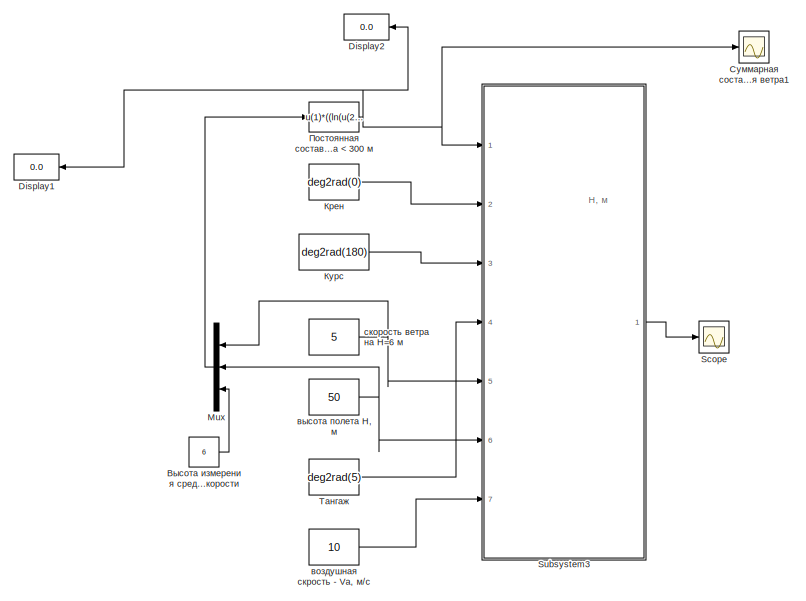
[diagram: root canvas - part 1/2, top left region]
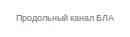
[diagram: root canvas - part 2/2, bottom right region]
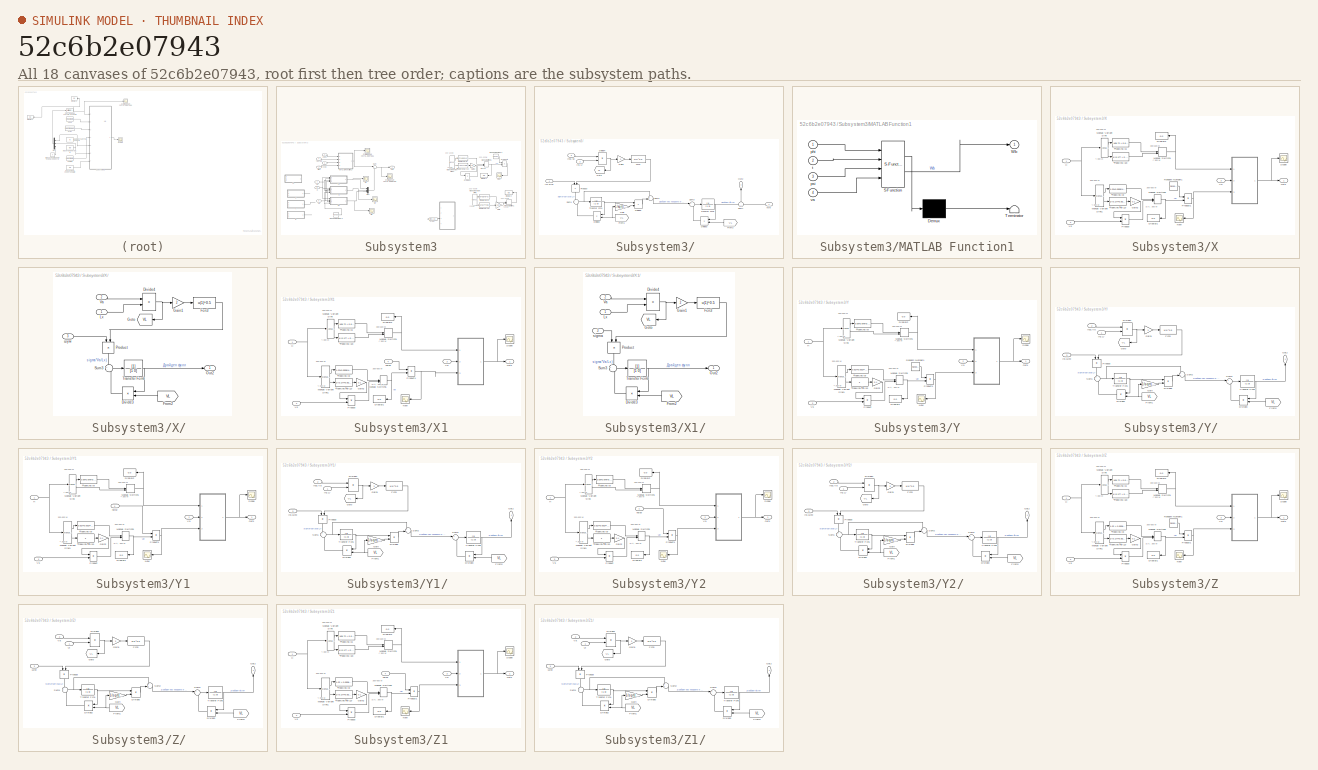
[diagram: thumbnail index - all 18 canvases of the model, root first then tree order]
MODEL slx_52c6b2e07943
KIND model
CONFIG AbsTol = auto
CONFIG EnableMultiTasking = on
CONFIG FixedStep = auto
CONFIG MaxStep = 0.1
CONFIG MinStep = auto
CONFIG RelTol = 1e-3
CONFIG SampleTimeConstraint = Unconstrained
CONFIG Solver = ode45
CONFIG SolverName = ode45
CONFIG StartTime = 0.0
CONFIG StopTime = 10
BLOCK [Fcn]     Постоянная составляющая скорости ветра < 300 м
  Expr = u(1)*((ln(u(2)/0.15)/(ln(u(3)/0.15))))
BLOCK [Display] Display1
  Decimation = 1
  NameLocation = top
  Ports = [1]
BLOCK [Display] Display2
  Decimation = 1
  NameLocation = top
  Ports = [1]
BLOCK [Mux] Mux
  DisplayOption = bar
  Inputs = 3
  Ports = [3, 1]
BLOCK [Scope] Scope
  Floating = off
  NumInputPorts = 1
  Ports = [1]
  ScopeSpecificationString = Simulink.scopes.TimeScopeBlockCfg('CurrentConfiguration', extmgr.ConfigurationSet(extmgr.Configuration('Core','General UI',true,'FigureColor',[1 1 1]),extmgr.Configuration('Core','Source UI',true),extmgr.Configuration('Sources','WiredSimulink',true,'DataLoggingVariableName','ScopeData1'),extmgr.Configuration('Visuals','Time Domain',true,'PlotType','Line','SerializedDisplays',{struct('MinYLimReal',...<+1808ch>
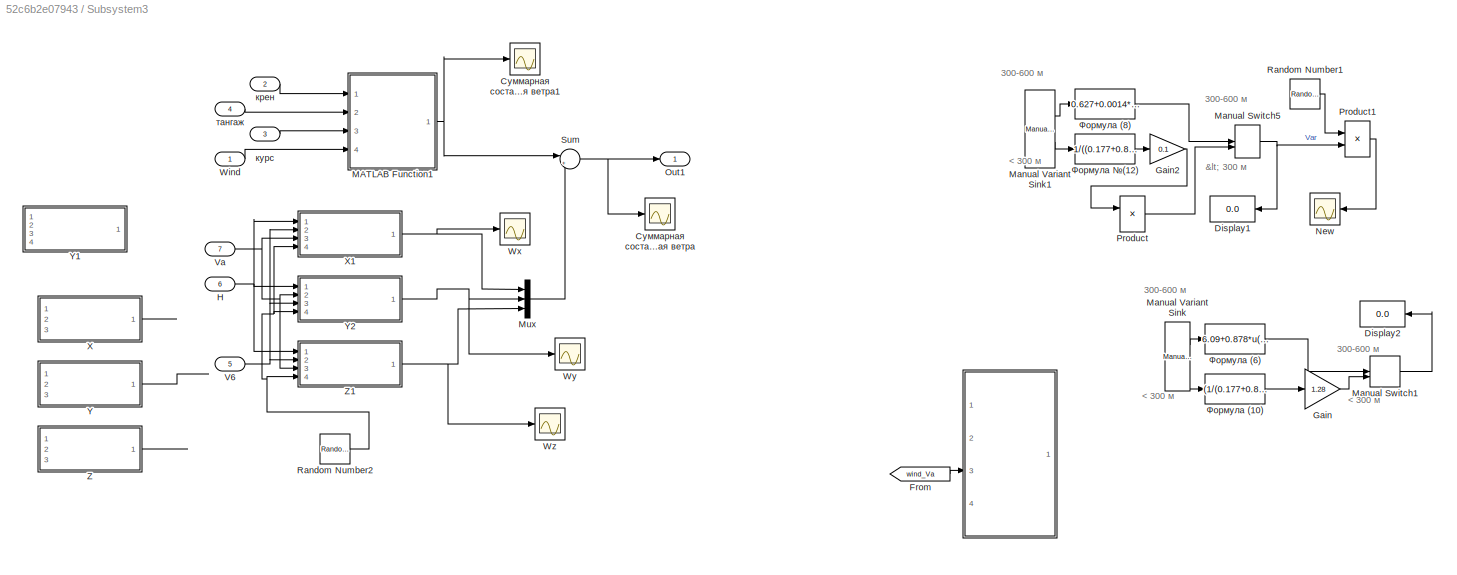
BLOCK [SubSystem] Subsystem3
  Ports = [7, 1]
  RequestExecContextInheritance = off
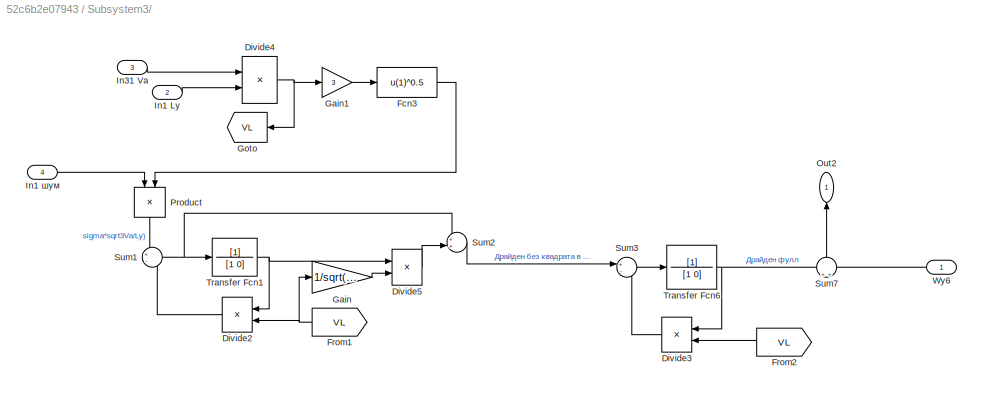
BLOCK [SubSystem] Subsystem3/ 
  Commented = on
  Ports = [4, 1]
  RequestExecContextInheritance = off
BLOCK [Product] Subsystem3/ /Divide2
  Inputs = **
  NameLocation = top
  Ports = [2, 1]
BLOCK [Product] Subsystem3/ /Divide3
  Inputs = **
  NameLocation = top
  Ports = [2, 1]
BLOCK [Product] Subsystem3/ /Divide4
  Inputs = */
  NameLocation = top
  Ports = [2, 1]
BLOCK [Product] Subsystem3/ /Divide5
  Inputs = **
  Ports = [2, 1]
BLOCK [Fcn] Subsystem3/ /Fcn3
  Expr = u(1)^0.5
BLOCK [From] Subsystem3/ /From1
  GotoTag = VL
  NameLocation = top
BLOCK [From] Subsystem3/ /From2
  GotoTag = VL
  NameLocation = top
BLOCK [Gain] Subsystem3/ /Gain
  Gain = 1/sqrt(3)
BLOCK [Gain] Subsystem3/ /Gain1
  Gain = 3
  NameLocation = top
BLOCK [Goto] Subsystem3/ /Goto
  GotoTag = VL
BLOCK [Inport] Subsystem3/ /In1 Ly
  NameLocation = top
  Port = 2
BLOCK [Inport] Subsystem3/ /In1 шум 
  NameLocation = top
  Port = 4
BLOCK [Inport] Subsystem3/ /In31 Va
  NameLocation = top
  Port = 3
BLOCK [Outport] Subsystem3/ /Out2
  NameLocation = right
BLOCK [Product] Subsystem3/ /Product
  NameLocation = right
  Ports = [2, 1]
BLOCK [Sum] Subsystem3/ /Sum1
  Inputs = +-
  Ports = [2, 1]
BLOCK [Sum] Subsystem3/ /Sum2
  NameLocation = top
  Ports = [2, 1]
BLOCK [Sum] Subsystem3/ /Sum3
  Inputs = +-
  Ports = [2, 1]
BLOCK [Sum] Subsystem3/ /Sum7
  NameLocation = right
  Ports = [2, 1]
BLOCK [TransferFcn] Subsystem3/ /Transfer Fcn1
  Denominator = [1  0]
BLOCK [TransferFcn] Subsystem3/ /Transfer Fcn6
  Denominator = [1  0]
BLOCK [Inport] Subsystem3/ /Wy6
  NameLocation = top
BLOCK [Display] Subsystem3/Display1
  Commented = on
  Decimation = 1
  NameLocation = top
  Ports = [1]
BLOCK [Display] Subsystem3/Display2
  Commented = on
  Decimation = 1
  NameLocation = top
  Ports = [1]
BLOCK [From] Subsystem3/From
  Commented = on
  GotoTag = wind_Va
BLOCK [Gain] Subsystem3/Gain
  Commented = on
  Gain = 1.28
BLOCK [Gain] Subsystem3/Gain2
  Commented = on
  Gain = 0.1
BLOCK [Inport] Subsystem3/H
  Port = 6
BLOCK [SubSystem] Subsystem3/MATLAB Function1
  ErrorFcn = Stateflow.Translate.translate
  PermitHierarchicalResolution = ExplicitOnly
  Ports = [4, 1]
  RequestExecContextInheritance = off
  SFBlockType = MATLAB Function
  TreatAsAtomicUnit = on
BLOCK [Demux] Subsystem3/MATLAB Function1/ Demux 
  Outputs = 1
  Ports = [1, 1]
BLOCK [S-Function] Subsystem3/MATLAB Function1/ SFunction 
  EnableBusSupport = on
  FunctionName = sf_sfun
  PortCounts = [4 2]
  Ports = [4, 2]
  SFcnIsStateOwnerBlock = off
  SFunctionDeploymentMode = off
  Tag = Stateflow S-Function 1
BLOCK [Terminator] Subsystem3/MATLAB Function1/ Terminator 
BLOCK [Outport] Subsystem3/MATLAB Function1/Wb
BLOCK [Inport] Subsystem3/MATLAB Function1/phi
BLOCK [Inport] Subsystem3/MATLAB Function1/psi
  Port = 3
BLOCK [Inport] Subsystem3/MATLAB Function1/t
  Port = 2
BLOCK [Inport] Subsystem3/MATLAB Function1/va
  Port = 4
BLOCK [ManualSwitch] Subsystem3/Manual Switch1
  Commented = on
  CurrentSetting = 0
BLOCK [ManualSwitch] Subsystem3/Manual Switch5
  Commented = on
  CurrentSetting = 0
BLOCK [Reference] Subsystem3/Manual Variant Sink  REF=simulink/Signal
Routing/Manual
Variant Sink
  Commented = on
  Ports = [1, 2]
  SourceBlock = simulink/Signal\nRouting/Manual\nVariant Sink
  SourceProductBaseCode = SL
  SourceType = ManualVariantSink
BLOCK [Reference] Subsystem3/Manual Variant Sink1  REF=simulink/Signal
Routing/Manual
Variant Sink
  Commented = on
  Ports = [1, 2]
  SourceBlock = simulink/Signal\nRouting/Manual\nVariant Sink
  SourceProductBaseCode = SL
  SourceType = ManualVariantSink
BLOCK [Mux] Subsystem3/Mux
  DisplayOption = bar
  Inputs = 3
  Ports = [3, 1]
BLOCK [Scope] Subsystem3/New
  Commented = on
  Floating = off
  NameLocation = top
  NumInputPorts = 1
  Ports = [1]
  ScopeSpecificationString = Simulink.scopes.TimeScopeBlockCfg('CurrentConfiguration', extmgr.ConfigurationSet(extmgr.Configuration('Core','General UI',true),extmgr.Configuration('Core','Source UI',true),extmgr.Configuration('Sources','WiredSimulink',true,'DataLoggingVariableName','ScopeData1'),extmgr.Configuration('Visuals','Time Domain',true,'SerializedDisplays',{struct('MinYLimReal','-2.82261','MaxYLimReal','2.57881','YLab...<+1515ch>
BLOCK [Outport] Subsystem3/Out1
BLOCK [Product] Subsystem3/Product
  Commented = on
  Ports = [2, 1]
BLOCK [Product] Subsystem3/Product1
  Commented = on
  Ports = [2, 1]
BLOCK [RandomNumber] Subsystem3/Random Number1
  Commented = on
  SampleTime = 0.1
BLOCK [RandomNumber] Subsystem3/Random Number2
  SampleTime = 0.1
BLOCK [Sum] Subsystem3/Sum
  Inputs = |++
  Ports = [2, 1]
BLOCK [Inport] Subsystem3/V6
  Port = 5
BLOCK [Inport] Subsystem3/Va
  Port = 7
BLOCK [Inport] Subsystem3/Wind
BLOCK [Scope] Subsystem3/Wx
  Floating = off
  NumInputPorts = 1
  Ports = [1]
  ScopeSpecificationString = Simulink.scopes.TimeScopeBlockCfg('CurrentConfiguration', extmgr.ConfigurationSet(extmgr.Configuration('Core','General UI',true),extmgr.Configuration('Core','Source UI',true),extmgr.Configuration('Sources','WiredSimulink',true,'DataLoggingVariableName','ScopeData4'),extmgr.Configuration('Visuals','Time Domain',true,'SerializedDisplays',{struct('MinYLimReal','-0.67805','MaxYLimReal','0.60598','YLab...<+1388ch>
BLOCK [Scope] Subsystem3/Wy
  Floating = off
  NumInputPorts = 1
  Ports = [1]
  ScopeSpecificationString = Simulink.scopes.TimeScopeBlockCfg('CurrentConfiguration', extmgr.ConfigurationSet(extmgr.Configuration('Core','General UI',true),extmgr.Configuration('Core','Source UI',true),extmgr.Configuration('Sources','WiredSimulink',true,'DataLoggingVariableName','ScopeData5'),extmgr.Configuration('Visuals','Time Domain',true,'SerializedDisplays',{struct('MinYLimReal','-0.15319','MaxYLimReal','0.25218','YLab...<+1390ch>
BLOCK [Scope] Subsystem3/Wz
  Floating = off
  NumInputPorts = 1
  Ports = [1]
  ScopeSpecificationString = Simulink.scopes.TimeScopeBlockCfg('CurrentConfiguration', extmgr.ConfigurationSet(extmgr.Configuration('Core','General UI',true),extmgr.Configuration('Core','Source UI',true),extmgr.Configuration('Sources','WiredSimulink',true,'DataLoggingVariableName','ScopeData6'),extmgr.Configuration('Visuals','Time Domain',true,'SerializedDisplays',{struct('MinYLimReal','-0.71714','MaxYLimReal','0.62654','YLab...<+1391ch>
BLOCK [SubSystem] Subsystem3/X
  Commented = on
  Ports = [3, 1]
  RequestExecContextInheritance = off
  TreatAsAtomicUnit = on
BLOCK [SubSystem] Subsystem3/X/ 
  Ports = [3, 1]
  RequestExecContextInheritance = off
BLOCK [Product] Subsystem3/X/ /Divide3
  Inputs = **
  NameLocation = top
  Ports = [2, 1]
BLOCK [Product] Subsystem3/X/ /Divide4
  Inputs = */
  NameLocation = top
  Ports = [2, 1]
BLOCK [Fcn] Subsystem3/X/ /Fcn3
  Expr = u(1)^0.5
BLOCK [From] Subsystem3/X/ /From2
  GotoTag = VL
  NameLocation = top
BLOCK [Gain] Subsystem3/X/ /Gain1
  Gain = 2
  NameLocation = top
BLOCK [Goto] Subsystem3/X/ /Goto
  GotoTag = VL
BLOCK [Inport] Subsystem3/X/ /Lx
  NameLocation = top
BLOCK [Outport] Subsystem3/X/ /Out2
BLOCK [Product] Subsystem3/X/ /Product
  NameLocation = right
  Ports = [2, 1]
BLOCK [Sum] Subsystem3/X/ /Sum3
  Inputs = +-
  Ports = [2, 1]
BLOCK [TransferFcn] Subsystem3/X/ /Transfer Fcn6
  Denominator = [1  0]
BLOCK [Inport] Subsystem3/X/ /Va
  NameLocation = top
  Port = 2
BLOCK [Inport] Subsystem3/X/ /шум 
  NameLocation = top
  Port = 3
BLOCK [Display] Subsystem3/X/Display1
  Decimation = 1
  NameLocation = top
  Ports = [1]
BLOCK [Display] Subsystem3/X/Display2
  Decimation = 1
  NameLocation = top
  Ports = [1]
BLOCK [Gain] Subsystem3/X/Gain2
  Gain = 0.1
BLOCK [Inport] Subsystem3/X/H
BLOCK [ManualSwitch] Subsystem3/X/Manual Switch1
  CurrentSetting = 0
BLOCK [ManualSwitch] Subsystem3/X/Manual Switch5
  CurrentSetting = 0
BLOCK [Reference] Subsystem3/X/Manual Variant Sink  REF=simulink/Signal
Routing/Manual
Variant Sink
  Ports = [1, 2]
  SourceBlock = simulink/Signal\nRouting/Manual\nVariant Sink
  SourceProductBaseCode = SL
  SourceType = ManualVariantSink
BLOCK [Reference] Subsystem3/X/Manual Variant Sink1  REF=simulink/Signal
Routing/Manual
Variant Sink
  Ports = [1, 2]
  SourceBlock = simulink/Signal\nRouting/Manual\nVariant Sink
  SourceProductBaseCode = SL
  SourceType = ManualVariantSink
BLOCK [Scope] Subsystem3/X/New
  Floating = off
  NameLocation = top
  NumInputPorts = 1
  Ports = [1]
  ScopeSpecificationString = Simulink.scopes.TimeScopeBlockCfg('CurrentConfiguration', extmgr.ConfigurationSet(extmgr.Configuration('Core','General UI',true),extmgr.Configuration('Core','Source UI',true),extmgr.Configuration('Sources','WiredSimulink',true,'DataLoggingVariableName','ScopeData2'),extmgr.Configuration('Visuals','Time Domain',true,'SerializedDisplays',{struct('MinYLimReal','-2.82261','MaxYLimReal','2.57881','YLab...<+1515ch>  <repeated x7 — deduplicated; at blocks: New>
BLOCK [Outport] Subsystem3/X/Out1
BLOCK [Product] Subsystem3/X/Product
  Ports = [2, 1]
BLOCK [Product] Subsystem3/X/Product1
  Ports = [2, 1]
BLOCK [RandomNumber] Subsystem3/X/Random Number1
  SampleTime = 0.1
BLOCK [Scope] Subsystem3/X/Scope
  Floating = off
  NumInputPorts = 1
  Ports = [1]
  ScopeSpecificationString = Simulink.scopes.TimeScopeBlockCfg('CurrentConfiguration', extmgr.ConfigurationSet(extmgr.Configuration('Core','General UI',true),extmgr.Configuration('Core','Source UI',true),extmgr.Configuration('Sources','WiredSimulink',true,'DataLoggingVariableName','ScopeData3'),extmgr.Configuration('Visuals','Time Domain',true),extmgr.Configuration('Tools','Plot Navigation',true),extmgr.Configuration('Tools',...<+40ch>  <repeated x4 — deduplicated; at blocks: Scope>
BLOCK [Inport] Subsystem3/X/V6
  Port = 2
BLOCK [Inport] Subsystem3/X/Va
  Port = 3
BLOCK [Fcn] Subsystem3/X/Формула (10)
  Expr = 1/(0.177 + 0.823*(u(1)/300))^1.2
BLOCK [Fcn] Subsystem3/X/Формула (6)
  Expr = -169.72 + 0.605*u(1)
BLOCK [Fcn] Subsystem3/X/Формула (8)
  Expr = 1.02+0.0008*u(1)
BLOCK [Fcn] Subsystem3/X/Формула №(12)
  Expr = 1/(0.177+0.823*(u(1)/300))^0.4
BLOCK [SubSystem] Subsystem3/X1
  Ports = [4, 1]
  RequestExecContextInheritance = off
  TreatAsAtomicUnit = on
BLOCK [SubSystem] Subsystem3/X1/ 
  Ports = [3, 1]
  RequestExecContextInheritance = off
BLOCK [Product] Subsystem3/X1/ /Divide3
  Inputs = **
  NameLocation = top
  Ports = [2, 1]
BLOCK [Product] Subsystem3/X1/ /Divide4
  Inputs = */
  NameLocation = top
  Ports = [2, 1]
BLOCK [Fcn] Subsystem3/X1/ /Fcn3
  Expr = u(1)^0.5
BLOCK [From] Subsystem3/X1/ /From2
  GotoTag = VL
  NameLocation = top
BLOCK [Gain] Subsystem3/X1/ /Gain1
  Gain = 2
  NameLocation = top
BLOCK [Goto] Subsystem3/X1/ /Goto
  GotoTag = VL
BLOCK [Inport] Subsystem3/X1/ /Lx
  NameLocation = top
BLOCK [Outport] Subsystem3/X1/ /Out2
BLOCK [Product] Subsystem3/X1/ /Product
  NameLocation = right
  Ports = [2, 1]
BLOCK [Sum] Subsystem3/X1/ /Sum3
  Inputs = +-
  Ports = [2, 1]
BLOCK [TransferFcn] Subsystem3/X1/ /Transfer Fcn6
  Denominator = [1  0]
BLOCK [Inport] Subsystem3/X1/ /Va
  NameLocation = top
  Port = 2
BLOCK [Inport] Subsystem3/X1/ /sigma 
  NameLocation = top
  Port = 3
BLOCK [Display] Subsystem3/X1/Display1
  Decimation = 1
  NameLocation = top
  Ports = [1]
BLOCK [Display] Subsystem3/X1/Display2
  Decimation = 1
  NameLocation = top
  Ports = [1]
BLOCK [Gain] Subsystem3/X1/Gain2
  Gain = 0.1
BLOCK [Inport] Subsystem3/X1/H
BLOCK [ManualSwitch] Subsystem3/X1/Manual Switch1
  CurrentSetting = 0
BLOCK [ManualSwitch] Subsystem3/X1/Manual Switch5
  CurrentSetting = 0
BLOCK [Reference] Subsystem3/X1/Manual Variant Sink  REF=simulink/Signal
Routing/Manual
Variant Sink
  Ports = [1, 2]
  SourceBlock = simulink/Signal\nRouting/Manual\nVariant Sink
  SourceProductBaseCode = SL
  SourceType = ManualVariantSink
BLOCK [Reference] Subsystem3/X1/Manual Variant Sink1  REF=simulink/Signal
Routing/Manual
Variant Sink
  Ports = [1, 2]
  SourceBlock = simulink/Signal\nRouting/Manual\nVariant Sink
  SourceProductBaseCode = SL
  SourceType = ManualVariantSink
BLOCK [Scope] Subsystem3/X1/New
  Floating = off
  NameLocation = top
  NumInputPorts = 1
  Ports = [1]
BLOCK [Outport] Subsystem3/X1/Out1
BLOCK [Product] Subsystem3/X1/Product
  Ports = [2, 1]
BLOCK [Product] Subsystem3/X1/Product1
  Ports = [2, 1]
BLOCK [Scope] Subsystem3/X1/Scope
  Floating = off
  NumInputPorts = 1
  Ports = [1]
BLOCK [Inport] Subsystem3/X1/V6
  Port = 2
BLOCK [Inport] Subsystem3/X1/Va
  Port = 3
BLOCK [Inport] Subsystem3/X1/noise
  Port = 4
BLOCK [Fcn] Subsystem3/X1/Формула (10)
  Expr = 1/(0.177 + 0.823*(u(1)/300))^1.2
BLOCK [Fcn] Subsystem3/X1/Формула (6)
  Expr = -169.72 + 0.605*u(1)
BLOCK [Fcn] Subsystem3/X1/Формула (8)
  Expr = 1.02+0.0008*u(1)
BLOCK [Fcn] Subsystem3/X1/Формула №(12)
  Expr = 1/(0.177+0.823*(u(1)/300))^0.4
BLOCK [SubSystem] Subsystem3/Y
  Commented = on
  Ports = [3, 1]
  RequestExecContextInheritance = off
  TreatAsAtomicUnit = on
BLOCK [SubSystem] Subsystem3/Y/ 
  Ports = [3, 1]
  RequestExecContextInheritance = off
BLOCK [Product] Subsystem3/Y/ /Divide2
  Inputs = **
  NameLocation = top
  Ports = [2, 1]
BLOCK [Product] Subsystem3/Y/ /Divide3
  Inputs = **
  NameLocation = top
  Ports = [2, 1]
BLOCK [Product] Subsystem3/Y/ /Divide4
  Inputs = */
  NameLocation = top
  Ports = [2, 1]
BLOCK [Product] Subsystem3/Y/ /Divide5
  Inputs = **
  Ports = [2, 1]
BLOCK [Fcn] Subsystem3/Y/ /Fcn3
  Expr = u(1)^0.5
BLOCK [From] Subsystem3/Y/ /From1
  GotoTag = VL
  NameLocation = top
BLOCK [From] Subsystem3/Y/ /From2
  GotoTag = VL
  NameLocation = top
BLOCK [Gain] Subsystem3/Y/ /Gain
  Gain = 1/sqrt(3)
BLOCK [Gain] Subsystem3/Y/ /Gain1
  Gain = 3
  NameLocation = top
BLOCK [Goto] Subsystem3/Y/ /Goto
  GotoTag = VL
BLOCK [Inport] Subsystem3/Y/ /In1 Ly
  NameLocation = top
BLOCK [Inport] Subsystem3/Y/ /In1 шум 
  NameLocation = top
  Port = 3
BLOCK [Inport] Subsystem3/Y/ /In31 Va
  NameLocation = top
  Port = 2
BLOCK [Outport] Subsystem3/Y/ /Out2
  NameLocation = right
BLOCK [Product] Subsystem3/Y/ /Product
  NameLocation = right
  Ports = [2, 1]
BLOCK [Sum] Subsystem3/Y/ /Sum1
  Inputs = +-
  Ports = [2, 1]
BLOCK [Sum] Subsystem3/Y/ /Sum2
  NameLocation = top
  Ports = [2, 1]
BLOCK [Sum] Subsystem3/Y/ /Sum3
  Inputs = +-
  Ports = [2, 1]
BLOCK [TransferFcn] Subsystem3/Y/ /Transfer Fcn1
  Denominator = [1  0]
BLOCK [TransferFcn] Subsystem3/Y/ /Transfer Fcn6
  Denominator = [1  0]
BLOCK [Display] Subsystem3/Y/Display1
  Decimation = 1
  NameLocation = top
  Ports = [1]
BLOCK [Display] Subsystem3/Y/Display2
  Decimation = 1
  NameLocation = top
  Ports = [1]
BLOCK [Gain] Subsystem3/Y/Gain2
  Gain = 0.1
BLOCK [Inport] Subsystem3/Y/H
BLOCK [ManualSwitch] Subsystem3/Y/Manual Switch1
  CurrentSetting = 0
BLOCK [ManualSwitch] Subsystem3/Y/Manual Switch5
  CurrentSetting = 0
BLOCK [Reference] Subsystem3/Y/Manual Variant Sink  REF=simulink/Signal
Routing/Manual
Variant Sink
  Ports = [1, 2]
  SourceBlock = simulink/Signal\nRouting/Manual\nVariant Sink
  SourceProductBaseCode = SL
  SourceType = ManualVariantSink
BLOCK [Reference] Subsystem3/Y/Manual Variant Sink1  REF=simulink/Signal
Routing/Manual
Variant Sink
  Ports = [1, 2]
  SourceBlock = simulink/Signal\nRouting/Manual\nVariant Sink
  SourceProductBaseCode = SL
  SourceType = ManualVariantSink
BLOCK [Scope] Subsystem3/Y/New
  Floating = off
  NameLocation = top
  NumInputPorts = 1
  Ports = [1]
BLOCK [Outport] Subsystem3/Y/Out1
BLOCK [Product] Subsystem3/Y/Product
  Ports = [2, 1]
BLOCK [Product] Subsystem3/Y/Product1
  Ports = [2, 1]
BLOCK [RandomNumber] Subsystem3/Y/Random Number1
  SampleTime = 0.1
BLOCK [Scope] Subsystem3/Y/Scope
  Floating = off
  NumInputPorts = 1
  Ports = [1]
  ScopeSpecificationString = Simulink.scopes.TimeScopeBlockCfg('CurrentConfiguration', extmgr.ConfigurationSet(extmgr.Configuration('Core','General UI',true),extmgr.Configuration('Core','Source UI',true),extmgr.Configuration('Sources','WiredSimulink',true,'DataLoggingVariableName','ScopeData3'),extmgr.Configuration('Visuals','Time Domain',true,'SerializedDisplays',{struct('MinYLimReal','-0.15319','MaxYLimReal','0.25218','YLab...<+1360ch>  <repeated x3 — deduplicated; at blocks: Scope>
BLOCK [Inport] Subsystem3/Y/V6
  Port = 3
BLOCK [Inport] Subsystem3/Y/Va
  Port = 2
BLOCK [Fcn] Subsystem3/Y/Формула (6)
  Expr = 6.09+0.878*u(1)
BLOCK [Fcn] Subsystem3/Y/Формула (8)
  Expr = 0.627+0.0014*u(1)
BLOCK [Fcn] Subsystem3/Y/Формула №(12)
  Expr = 1
BLOCK [SubSystem] Subsystem3/Y1
  Commented = on
  Ports = [4, 1]
  RequestExecContextInheritance = off
  TreatAsAtomicUnit = on
BLOCK [SubSystem] Subsystem3/Y1/ 
  Ports = [3, 1]
  RequestExecContextInheritance = off
BLOCK [Product] Subsystem3/Y1/ /Divide2
  Inputs = **
  NameLocation = top
  Ports = [2, 1]
BLOCK [Product] Subsystem3/Y1/ /Divide3
  Inputs = **
  NameLocation = top
  Ports = [2, 1]
BLOCK [Product] Subsystem3/Y1/ /Divide4
  Inputs = */
  NameLocation = top
  Ports = [2, 1]
BLOCK [Product] Subsystem3/Y1/ /Divide5
  Inputs = **
  Ports = [2, 1]
BLOCK [Fcn] Subsystem3/Y1/ /Fcn3
  Expr = u(1)^0.5
BLOCK [From] Subsystem3/Y1/ /From1
  GotoTag = VL
  NameLocation = top
BLOCK [From] Subsystem3/Y1/ /From2
  GotoTag = VL
  NameLocation = top
BLOCK [Gain] Subsystem3/Y1/ /Gain
  Gain = 1/sqrt(3)
BLOCK [Gain] Subsystem3/Y1/ /Gain1
  Gain = 3
  NameLocation = top
BLOCK [Goto] Subsystem3/Y1/ /Goto
  GotoTag = VL
BLOCK [Inport] Subsystem3/Y1/ /In1 Ly
  NameLocation = top
BLOCK [Inport] Subsystem3/Y1/ /In1 шум 
  NameLocation = top
  Port = 3
BLOCK [Inport] Subsystem3/Y1/ /In31 Va
  NameLocation = top
  Port = 2
BLOCK [Outport] Subsystem3/Y1/ /Out2
  NameLocation = right
BLOCK [Product] Subsystem3/Y1/ /Product
  NameLocation = right
  Ports = [2, 1]
BLOCK [Sum] Subsystem3/Y1/ /Sum1
  Inputs = +-
  Ports = [2, 1]
BLOCK [Sum] Subsystem3/Y1/ /Sum2
  NameLocation = top
  Ports = [2, 1]
BLOCK [Sum] Subsystem3/Y1/ /Sum3
  Inputs = +-
  Ports = [2, 1]
BLOCK [TransferFcn] Subsystem3/Y1/ /Transfer Fcn1
  Denominator = [1  0]
BLOCK [TransferFcn] Subsystem3/Y1/ /Transfer Fcn6
  Denominator = [1  0]
BLOCK [Display] Subsystem3/Y1/Display1
  Decimation = 1
  NameLocation = top
  Ports = [1]
BLOCK [Display] Subsystem3/Y1/Display2
  Decimation = 1
  NameLocation = top
  Ports = [1]
BLOCK [Gain] Subsystem3/Y1/Gain2
  Gain = 0.1
BLOCK [Inport] Subsystem3/Y1/H
BLOCK [ManualSwitch] Subsystem3/Y1/Manual Switch1
  CurrentSetting = 0
BLOCK [ManualSwitch] Subsystem3/Y1/Manual Switch5
  CurrentSetting = 0
BLOCK [Reference] Subsystem3/Y1/Manual Variant Sink  REF=simulink/Signal
Routing/Manual
Variant Sink
  Ports = [1, 2]
  SourceBlock = simulink/Signal\nRouting/Manual\nVariant Sink
  SourceProductBaseCode = SL
  SourceType = ManualVariantSink
BLOCK [Reference] Subsystem3/Y1/Manual Variant Sink1  REF=simulink/Signal
Routing/Manual
Variant Sink
  Ports = [1, 2]
  SourceBlock = simulink/Signal\nRouting/Manual\nVariant Sink
  SourceProductBaseCode = SL
  SourceType = ManualVariantSink
BLOCK [Scope] Subsystem3/Y1/New
  Floating = off
  NameLocation = top
  NumInputPorts = 1
  Ports = [1]
BLOCK [Outport] Subsystem3/Y1/Out1
BLOCK [Product] Subsystem3/Y1/Product
  Ports = [2, 1]
BLOCK [Product] Subsystem3/Y1/Product1
  Ports = [2, 1]
BLOCK [Scope] Subsystem3/Y1/Scope
  Floating = off
  NumInputPorts = 1
  Ports = [1]
BLOCK [Inport] Subsystem3/Y1/V6
  Port = 3
BLOCK [Inport] Subsystem3/Y1/Va
  Port = 2
BLOCK [Inport] Subsystem3/Y1/noise
  Port = 4
BLOCK [Fcn] Subsystem3/Y1/Формула (6)
  Expr = 6.09+0.878*u(1)
BLOCK [Fcn] Subsystem3/Y1/Формула (8)
  Expr = 0.627+0.0014*u(1)
BLOCK [Fcn] Subsystem3/Y1/Формула №(12)
  Expr = 1
BLOCK [SubSystem] Subsystem3/Y2
  Ports = [4, 1]
  RequestExecContextInheritance = off
  TreatAsAtomicUnit = on
BLOCK [SubSystem] Subsystem3/Y2/ 
  Ports = [3, 1]
  RequestExecContextInheritance = off
BLOCK [Product] Subsystem3/Y2/ /Divide2
  Inputs = **
  NameLocation = top
  Ports = [2, 1]
BLOCK [Product] Subsystem3/Y2/ /Divide3
  Inputs = **
  NameLocation = top
  Ports = [2, 1]
BLOCK [Product] Subsystem3/Y2/ /Divide4
  Inputs = */
  NameLocation = top
  Ports = [2, 1]
BLOCK [Product] Subsystem3/Y2/ /Divide5
  Inputs = **
  Ports = [2, 1]
BLOCK [Fcn] Subsystem3/Y2/ /Fcn3
  Expr = u(1)^0.5
BLOCK [From] Subsystem3/Y2/ /From1
  GotoTag = VL
  NameLocation = top
BLOCK [From] Subsystem3/Y2/ /From2
  GotoTag = VL
  NameLocation = top
BLOCK [Gain] Subsystem3/Y2/ /Gain
  Gain = 1/sqrt(3)
BLOCK [Gain] Subsystem3/Y2/ /Gain1
  Gain = 3
  NameLocation = top
BLOCK [Goto] Subsystem3/Y2/ /Goto
  GotoTag = VL
BLOCK [Inport] Subsystem3/Y2/ /In1 Ly
  NameLocation = top
BLOCK [Inport] Subsystem3/Y2/ /In1 шум 
  NameLocation = top
  Port = 3
BLOCK [Inport] Subsystem3/Y2/ /In31 Va
  NameLocation = top
  Port = 2
BLOCK [Outport] Subsystem3/Y2/ /Out2
  NameLocation = right
BLOCK [Product] Subsystem3/Y2/ /Product
  NameLocation = right
  Ports = [2, 1]
BLOCK [Sum] Subsystem3/Y2/ /Sum1
  Inputs = +-
  Ports = [2, 1]
BLOCK [Sum] Subsystem3/Y2/ /Sum2
  NameLocation = top
  Ports = [2, 1]
BLOCK [Sum] Subsystem3/Y2/ /Sum3
  Inputs = +-
  Ports = [2, 1]
BLOCK [TransferFcn] Subsystem3/Y2/ /Transfer Fcn1
  Denominator = [1  0]
BLOCK [TransferFcn] Subsystem3/Y2/ /Transfer Fcn6
  Denominator = [1  0]
BLOCK [Display] Subsystem3/Y2/Display1
  Decimation = 1
  NameLocation = top
  Ports = [1]
BLOCK [Display] Subsystem3/Y2/Display2
  Decimation = 1
  NameLocation = top
  Ports = [1]
BLOCK [Gain] Subsystem3/Y2/Gain2
  Gain = 0.1
BLOCK [Inport] Subsystem3/Y2/H
BLOCK [ManualSwitch] Subsystem3/Y2/Manual Switch1
  CurrentSetting = 0
BLOCK [ManualSwitch] Subsystem3/Y2/Manual Switch5
  CurrentSetting = 0
BLOCK [Reference] Subsystem3/Y2/Manual Variant Sink  REF=simulink/Signal
Routing/Manual
Variant Sink
  Ports = [1, 2]
  SourceBlock = simulink/Signal\nRouting/Manual\nVariant Sink
  SourceProductBaseCode = SL
  SourceType = ManualVariantSink
BLOCK [Reference] Subsystem3/Y2/Manual Variant Sink1  REF=simulink/Signal
Routing/Manual
Variant Sink
  Ports = [1, 2]
  SourceBlock = simulink/Signal\nRouting/Manual\nVariant Sink
  SourceProductBaseCode = SL
  SourceType = ManualVariantSink
BLOCK [Scope] Subsystem3/Y2/New
  Floating = off
  NameLocation = top
  NumInputPorts = 1
  Ports = [1]
BLOCK [Outport] Subsystem3/Y2/Out1
BLOCK [Product] Subsystem3/Y2/Product
  Ports = [2, 1]
BLOCK [Product] Subsystem3/Y2/Product1
  Ports = [2, 1]
BLOCK [Scope] Subsystem3/Y2/Scope
  Floating = off
  NumInputPorts = 1
  Ports = [1]
BLOCK [Inport] Subsystem3/Y2/V6
  Port = 3
BLOCK [Inport] Subsystem3/Y2/Va
  Port = 2
BLOCK [Inport] Subsystem3/Y2/noise
  Port = 4
BLOCK [Fcn] Subsystem3/Y2/Формула (6)
  Expr = 6.09+0.878*u(1)
BLOCK [Fcn] Subsystem3/Y2/Формула (8)
  Expr = 0.627+0.0014*u(1)
BLOCK [Fcn] Subsystem3/Y2/Формула №(12)
  Expr = 1
BLOCK [SubSystem] Subsystem3/Z
  Commented = on
  Ports = [3, 1]
  RequestExecContextInheritance = off
  TreatAsAtomicUnit = on
BLOCK [SubSystem] Subsystem3/Z/ 
  Ports = [3, 1]
  RequestExecContextInheritance = off
BLOCK [Product] Subsystem3/Z/ /Divide2
  Inputs = **
  NameLocation = top
  Ports = [2, 1]
BLOCK [Product] Subsystem3/Z/ /Divide3
  Inputs = **
  NameLocation = top
  Ports = [2, 1]
BLOCK [Product] Subsystem3/Z/ /Divide4
  Inputs = */
  NameLocation = top
  Ports = [2, 1]
BLOCK [Product] Subsystem3/Z/ /Divide5
  Inputs = **
  Ports = [2, 1]
BLOCK [Fcn] Subsystem3/Z/ /Fcn3
  Expr = u(1)^0.5
BLOCK [From] Subsystem3/Z/ /From1
  GotoTag = VL
  NameLocation = top
BLOCK [From] Subsystem3/Z/ /From2
  GotoTag = VL
  NameLocation = top
BLOCK [Gain] Subsystem3/Z/ /Gain
  Gain = 1/sqrt(3)
BLOCK [Gain] Subsystem3/Z/ /Gain1
  Gain = 3
  NameLocation = top
BLOCK [Goto] Subsystem3/Z/ /Goto
  GotoTag = VL
BLOCK [Inport] Subsystem3/Z/ /Lz
  NameLocation = top
BLOCK [Outport] Subsystem3/Z/ /Out2
  NameLocation = right
BLOCK [Product] Subsystem3/Z/ /Product
  NameLocation = right
  Ports = [2, 1]
BLOCK [Sum] Subsystem3/Z/ /Sum1
  Inputs = +-
  Ports = [2, 1]
BLOCK [Sum] Subsystem3/Z/ /Sum2
  NameLocation = top
  Ports = [2, 1]
BLOCK [Sum] Subsystem3/Z/ /Sum3
  Inputs = +-
  Ports = [2, 1]
BLOCK [TransferFcn] Subsystem3/Z/ /Transfer Fcn1
  Denominator = [1  0]
BLOCK [TransferFcn] Subsystem3/Z/ /Transfer Fcn6
  Denominator = [1  0]
BLOCK [Inport] Subsystem3/Z/ /Va
  NameLocation = top
  Port = 2
BLOCK [Inport] Subsystem3/Z/ /шум 
  NameLocation = top
  Port = 3
BLOCK [Display] Subsystem3/Z/Display1
  Decimation = 1
  NameLocation = top
  Ports = [1]
BLOCK [Display] Subsystem3/Z/Display2
  Decimation = 1
  NameLocation = top
  Ports = [1]
BLOCK [Gain] Subsystem3/Z/Gain2
  Gain = 0.1
BLOCK [Inport] Subsystem3/Z/H
BLOCK [ManualSwitch] Subsystem3/Z/Manual Switch1
  CurrentSetting = 0
BLOCK [ManualSwitch] Subsystem3/Z/Manual Switch5
  CurrentSetting = 0
BLOCK [Reference] Subsystem3/Z/Manual Variant Sink  REF=simulink/Signal
Routing/Manual
Variant Sink
  Ports = [1, 2]
  SourceBlock = simulink/Signal\nRouting/Manual\nVariant Sink
  SourceProductBaseCode = SL
  SourceType = ManualVariantSink
BLOCK [Reference] Subsystem3/Z/Manual Variant Sink1  REF=simulink/Signal
Routing/Manual
Variant Sink
  Ports = [1, 2]
  SourceBlock = simulink/Signal\nRouting/Manual\nVariant Sink
  SourceProductBaseCode = SL
  SourceType = ManualVariantSink
BLOCK [Scope] Subsystem3/Z/New
  Floating = off
  NameLocation = top
  NumInputPorts = 1
  Ports = [1]
BLOCK [Outport] Subsystem3/Z/Out1
BLOCK [Product] Subsystem3/Z/Product
  Ports = [2, 1]
BLOCK [Product] Subsystem3/Z/Product1
  Ports = [2, 1]
BLOCK [RandomNumber] Subsystem3/Z/Random Number1
  SampleTime = 0.1
BLOCK [Scope] Subsystem3/Z/Scope
  Floating = off
  NumInputPorts = 1
  Ports = [1]
BLOCK [Inport] Subsystem3/Z/V6
  Port = 2
BLOCK [Inport] Subsystem3/Z/Va
  Port = 3
BLOCK [Fcn] Subsystem3/Z/Формула (10)
  Expr = 1/(0.177 + 0.823*(u(1)/300))^1.2
BLOCK [Fcn] Subsystem3/Z/Формула (6)
  Expr = -169.72 + 0.605*u(1)
BLOCK [Fcn] Subsystem3/Z/Формула (8)
  Expr = 1.02 + 0.0008*u(1)
BLOCK [Fcn] Subsystem3/Z/Формула №(12)
  Expr = 1/(0.177+0.823*(u(1)/300))^0.4
BLOCK [SubSystem] Subsystem3/Z1
  Ports = [4, 1]
  RequestExecContextInheritance = off
  TreatAsAtomicUnit = on
BLOCK [SubSystem] Subsystem3/Z1/ 
  Ports = [3, 1]
  RequestExecContextInheritance = off
BLOCK [Product] Subsystem3/Z1/ /Divide2
  Inputs = **
  NameLocation = top
  Ports = [2, 1]
BLOCK [Product] Subsystem3/Z1/ /Divide3
  Inputs = **
  NameLocation = top
  Ports = [2, 1]
BLOCK [Product] Subsystem3/Z1/ /Divide4
  Inputs = */
  NameLocation = top
  Ports = [2, 1]
BLOCK [Product] Subsystem3/Z1/ /Divide5
  Inputs = **
  Ports = [2, 1]
BLOCK [Fcn] Subsystem3/Z1/ /Fcn3
  Expr = u(1)^0.5
BLOCK [From] Subsystem3/Z1/ /From1
  GotoTag = VL
  NameLocation = top
BLOCK [From] Subsystem3/Z1/ /From2
  GotoTag = VL
  NameLocation = top
BLOCK [Gain] Subsystem3/Z1/ /Gain
  Gain = 1/sqrt(3)
BLOCK [Gain] Subsystem3/Z1/ /Gain1
  Gain = 3
  NameLocation = top
BLOCK [Goto] Subsystem3/Z1/ /Goto
  GotoTag = VL
BLOCK [Inport] Subsystem3/Z1/ /Lz
  NameLocation = top
BLOCK [Outport] Subsystem3/Z1/ /Out2
  NameLocation = right
BLOCK [Product] Subsystem3/Z1/ /Product
  NameLocation = right
  Ports = [2, 1]
BLOCK [Sum] Subsystem3/Z1/ /Sum1
  Inputs = +-
  Ports = [2, 1]
BLOCK [Sum] Subsystem3/Z1/ /Sum2
  NameLocation = top
  Ports = [2, 1]
BLOCK [Sum] Subsystem3/Z1/ /Sum3
  Inputs = +-
  Ports = [2, 1]
BLOCK [TransferFcn] Subsystem3/Z1/ /Transfer Fcn1
  Denominator = [1  0]
BLOCK [TransferFcn] Subsystem3/Z1/ /Transfer Fcn6
  Denominator = [1  0]
BLOCK [Inport] Subsystem3/Z1/ /Va
  NameLocation = top
  Port = 2
BLOCK [Inport] Subsystem3/Z1/ /шум 
  NameLocation = top
  Port = 3
BLOCK [Display] Subsystem3/Z1/Display1
  Decimation = 1
  NameLocation = top
  Ports = [1]
BLOCK [Display] Subsystem3/Z1/Display2
  Decimation = 1
  NameLocation = top
  Ports = [1]
BLOCK [Gain] Subsystem3/Z1/Gain2
  Gain = 0.1
BLOCK [Inport] Subsystem3/Z1/H
BLOCK [ManualSwitch] Subsystem3/Z1/Manual Switch1
  CurrentSetting = 0
BLOCK [ManualSwitch] Subsystem3/Z1/Manual Switch5
  CurrentSetting = 0
BLOCK [Reference] Subsystem3/Z1/Manual Variant Sink  REF=simulink/Signal
Routing/Manual
Variant Sink
  Ports = [1, 2]
  SourceBlock = simulink/Signal\nRouting/Manual\nVariant Sink
  SourceProductBaseCode = SL
  SourceType = ManualVariantSink
BLOCK [Reference] Subsystem3/Z1/Manual Variant Sink1  REF=simulink/Signal
Routing/Manual
Variant Sink
  Ports = [1, 2]
  SourceBlock = simulink/Signal\nRouting/Manual\nVariant Sink
  SourceProductBaseCode = SL
  SourceType = ManualVariantSink
BLOCK [Scope] Subsystem3/Z1/New
  Floating = off
  NameLocation = top
  NumInputPorts = 1
  Ports = [1]
BLOCK [Outport] Subsystem3/Z1/Out1
BLOCK [Product] Subsystem3/Z1/Product
  Ports = [2, 1]
BLOCK [Product] Subsystem3/Z1/Product1
  Ports = [2, 1]
BLOCK [Scope] Subsystem3/Z1/Scope
  Floating = off
  NumInputPorts = 1
  Ports = [1]
BLOCK [Inport] Subsystem3/Z1/V6
  Port = 2
BLOCK [Inport] Subsystem3/Z1/Va
  Port = 3
BLOCK [Inport] Subsystem3/Z1/noise
  Port = 4
BLOCK [Fcn] Subsystem3/Z1/Формула (10)
  Expr = 1/(0.177 + 0.823*(u(1)/300))^1.2
BLOCK [Fcn] Subsystem3/Z1/Формула (6)
  Expr = -169.72 + 0.605*u(1)
BLOCK [Fcn] Subsystem3/Z1/Формула (8)
  Expr = 1.02 + 0.0008*u(1)
BLOCK [Fcn] Subsystem3/Z1/Формула №(12)
  Expr = 1/(0.177+0.823*(u(1)/300))^0.4
BLOCK [Scope] Subsystem3/Суммарная составляющая ветра
  Floating = off
  NumInputPorts = 1
  Ports = [1]
  ScopeSpecificationString = Simulink.scopes.TimeScopeBlockCfg('CurrentConfiguration', extmgr.ConfigurationSet(extmgr.Configuration('Core','General UI',true),extmgr.Configuration('Core','Source UI',true),extmgr.Configuration('Sources','WiredSimulink',true,'DataLoggingVariableName','ScopeData1'),extmgr.Configuration('Visuals','Time Domain',true,'SerializedDisplays',{struct('MinYLimReal','-0.52911','MaxYLimReal','0.15625','YLab...<+1426ch>
BLOCK [Scope] Subsystem3/Суммарная составляющая ветра1
  Floating = off
  NumInputPorts = 1
  Ports = [1]
  ScopeSpecificationString = Simulink.scopes.TimeScopeBlockCfg('CurrentConfiguration', extmgr.ConfigurationSet(extmgr.Configuration('Core','General UI',true),extmgr.Configuration('Core','Source UI',true),extmgr.Configuration('Sources','WiredSimulink',true,'DataLoggingVariableName','ScopeData1'),extmgr.Configuration('Visuals','Time Domain',true,'SerializedDisplays',{struct('MinYLimReal','-8.91016','MaxYLimReal','1.75252','YLab...<+1447ch>
BLOCK [Fcn] Subsystem3/Формула (10)
  Commented = on
  Expr = (1/(0.177+0.823*(u(1)/300)^0.5))*10*2
BLOCK [Fcn] Subsystem3/Формула (6)
  Commented = on
  Expr = 6.09+0.878*u(1)
BLOCK [Fcn] Subsystem3/Формула (8)
  Commented = on
  Expr = 0.627+0.0014*u(1)
BLOCK [Fcn] Subsystem3/Формула №(12)
  Commented = on
  Expr = 1/((0.177+0.823*(u(1)/300))^0.4)
BLOCK [Inport] Subsystem3/крен
  Port = 2
BLOCK [Inport] Subsystem3/курс
  Port = 3
BLOCK [Inport] Subsystem3/тангаж 
  Port = 4
BLOCK [Constant] Высота измерения среднегодовой скорости
  Value = 6
BLOCK [Constant] Крен 
  Value = deg2rad(0)
BLOCK [Constant] Курс
  Value = deg2rad(180)
BLOCK [Scope] Суммарная составляющая ветра1
  Floating = off
  NumInputPorts = 1
  Ports = [1]
  ScopeSpecificationString = Simulink.scopes.TimeScopeBlockCfg('CurrentConfiguration', extmgr.ConfigurationSet(extmgr.Configuration('Core','General UI',true),extmgr.Configuration('Core','Source UI',true),extmgr.Configuration('Sources','WiredSimulink',true,'DataLoggingVariableName','ScopeData1'),extmgr.Configuration('Visuals','Time Domain',true,'SerializedDisplays',{struct('MinYLimReal','6.87386','MaxYLimReal','8.87386','YLabe...<+1471ch>
BLOCK [Constant] Тангаж
  Value = deg2rad(5)
BLOCK [Constant] воздушная скрость  - Vа, м//с
  Value = 10
BLOCK [Constant] высота полета Н, м 
  Value = 50
BLOCK [Constant] скорость ветра на Н=6 м 
  Value = 5
ANNOTATION (root): Н, м
ANNOTATION (root): Продольный канал БЛА
ANNOTATION Subsystem3: 300-600 м
ANNOTATION Subsystem3: < 300 м
ANNOTATION Subsystem3: 300-60 0 м
ANNOTATION Subsystem3/X: 300-600 м
ANNOTATION Subsystem3/X: < 300 м
ANNOTATION Subsystem3/X: 300-60 0 м
ANNOTATION Subsystem3/X1: 300-600 м
ANNOTATION Subsystem3/X1: < 300 м
ANNOTATION Subsystem3/X1: 300-60 0 м
ANNOTATION Subsystem3/Y: 300-600 м
ANNOTATION Subsystem3/Y: < 300 м
ANNOTATION Subsystem3/Y: 300-60 0 м
ANNOTATION Subsystem3/Y1: 300-600 м
ANNOTATION Subsystem3/Y1: < 300 м
ANNOTATION Subsystem3/Y1: 300-60 0 м
ANNOTATION Subsystem3/Y2: 300-600 м
ANNOTATION Subsystem3/Y2: < 300 м
ANNOTATION Subsystem3/Y2: 300-60 0 м
ANNOTATION Subsystem3/Z: 300-600 м
ANNOTATION Subsystem3/Z: < 300 м
ANNOTATION Subsystem3/Z: 300-60 0 м
ANNOTATION Subsystem3/Z1: 300-600 м
ANNOTATION Subsystem3/Z1: < 300 м
ANNOTATION Subsystem3/Z1: 300-60 0 м
NET     Постоянная составляющая скорости ветра < 300 м:1 -> Display1:1, Display2:1, Subsystem3:1, Суммарная составляющая ветра1:1
LINE Mux:1 ->     Постоянная составляющая скорости ветра < 300 м:1
LINE Subsystem3/ /Divide2:1 -> Subsystem3/ /Sum1:2
LINE Subsystem3/ /Divide3:1 -> Subsystem3/ /Sum3:2
NET Subsystem3/ /Divide4:1 -> Subsystem3/ /Gain1:1, Subsystem3/ /Goto:1
LINE Subsystem3/ /Divide5:1 -> Subsystem3/ /Sum2:2
LINE Subsystem3/ /Fcn3:1 -> Subsystem3/ /Product:2
NET Subsystem3/ /From1:1 -> Subsystem3/ /Divide2:2, Subsystem3/ /Gain:1
LINE Subsystem3/ /From2:1 -> Subsystem3/ /Divide3:2
LINE Subsystem3/ /Gain1:1 -> Subsystem3/ /Fcn3:1
LINE Subsystem3/ /Gain:1 -> Subsystem3/ /Divide5:2
LINE Subsystem3/ /In1 Ly:1 -> Subsystem3/ /Divide4:2
LINE Subsystem3/ /In1 шум :1 -> Subsystem3/ /Product:1
LINE Subsystem3/ /In31 Va:1 -> Subsystem3/ /Divide4:1
LINE Subsystem3/ /Product:1 -> Subsystem3/ /Sum1:1
NET Subsystem3/ /Sum1:1 -> Subsystem3/ /Sum2:1, Subsystem3/ /Transfer Fcn1:1
LINE Subsystem3/ /Sum2:1 -> Subsystem3/ /Sum3:1
LINE Subsystem3/ /Sum3:1 -> Subsystem3/ /Transfer Fcn6:1
LINE Subsystem3/ /Sum7:1 -> Subsystem3/ /Out2:1
NET Subsystem3/ /Transfer Fcn1:1 -> Subsystem3/ /Divide2:1, Subsystem3/ /Divide5:1
NET Subsystem3/ /Transfer Fcn6:1 -> Subsystem3/ /Divide3:1, Subsystem3/ /Sum7:1
LINE Subsystem3/ /Wy6:1 -> Subsystem3/ /Sum7:2
LINE Subsystem3/From:1 -> Subsystem3/ :3
LINE Subsystem3/Gain2:1 -> Subsystem3/Product:1
LINE Subsystem3/Gain:1 -> Subsystem3/Manual Switch1:2
NET Subsystem3/H:1 -> Subsystem3/X1:1, Subsystem3/Y2:1, Subsystem3/Z1:1
NET Subsystem3/MATLAB Function1:1 -> Subsystem3/Sum:1, Subsystem3/Суммарная составляющая ветра1:1
LINE Subsystem3/Manual Switch1:1 -> Subsystem3/Display2:1
NET Subsystem3/Manual Switch5:1 -> Subsystem3/Display1:1, Subsystem3/Product1:2
LINE Subsystem3/Manual Variant Sink1:1 -> Subsystem3/Формула (8):1
LINE Subsystem3/Manual Variant Sink1:2 -> Subsystem3/Формула №(12):1
LINE Subsystem3/Manual Variant Sink:1 -> Subsystem3/Формула (6):1
LINE Subsystem3/Manual Variant Sink:2 -> Subsystem3/Формула (10):1
LINE Subsystem3/Mux:1 -> Subsystem3/Sum:2
LINE Subsystem3/Product1:1 -> Subsystem3/New:1
LINE Subsystem3/Product:1 -> Subsystem3/Manual Switch5:2
LINE Subsystem3/Random Number1:1 -> Subsystem3/Product1:1
NET Subsystem3/Random Number2:1 -> Subsystem3/X1:4, Subsystem3/Y2:4, Subsystem3/Z1:4
NET Subsystem3/Sum:1 -> Subsystem3/Out1:1, Subsystem3/Суммарная составляющая ветра:1
NET Subsystem3/V6:1 -> Subsystem3/X1:2, Subsystem3/Y2:3, Subsystem3/Z1:2
NET Subsystem3/Va:1 -> Subsystem3/X1:3, Subsystem3/Y2:2, Subsystem3/Z1:3
LINE Subsystem3/Wind:1 -> Subsystem3/MATLAB Function1:4
LINE Subsystem3/X/ /Divide3:1 -> Subsystem3/X/ /Sum3:2
NET Subsystem3/X/ /Divide4:1 -> Subsystem3/X/ /Gain1:1, Subsystem3/X/ /Goto:1
LINE Subsystem3/X/ /Fcn3:1 -> Subsystem3/X/ /Product:2
LINE Subsystem3/X/ /From2:1 -> Subsystem3/X/ /Divide3:2
LINE Subsystem3/X/ /Gain1:1 -> Subsystem3/X/ /Fcn3:1
LINE Subsystem3/X/ /Lx:1 -> Subsystem3/X/ /Divide4:2
LINE Subsystem3/X/ /Product:1 -> Subsystem3/X/ /Sum3:1
LINE Subsystem3/X/ /Sum3:1 -> Subsystem3/X/ /Transfer Fcn6:1
NET Subsystem3/X/ /Transfer Fcn6:1 -> Subsystem3/X/ /Divide3:1, Subsystem3/X/ /Out2:1
LINE Subsystem3/X/ /Va:1 -> Subsystem3/X/ /Divide4:1
LINE Subsystem3/X/ /шум :1 -> Subsystem3/X/ /Product:1
NET Subsystem3/X/ :1 -> Subsystem3/X/Out1:1, Subsystem3/X/Scope:1
LINE Subsystem3/X/Gain2:1 -> Subsystem3/X/Product:1
NET Subsystem3/X/H:1 -> Subsystem3/X/Manual Variant Sink1:1, Subsystem3/X/Manual Variant Sink:1
NET Subsystem3/X/Manual Switch1:1 -> Subsystem3/X/ :1, Subsystem3/X/Display2:1
NET Subsystem3/X/Manual Switch5:1 -> Subsystem3/X/Display1:1, Subsystem3/X/Product1:2
LINE Subsystem3/X/Manual Variant Sink1:1 -> Subsystem3/X/Формула (8):1
LINE Subsystem3/X/Manual Variant Sink1:2 -> Subsystem3/X/Формула №(12):1
LINE Subsystem3/X/Manual Variant Sink:1 -> Subsystem3/X/Формула (6):1
LINE Subsystem3/X/Manual Variant Sink:2 -> Subsystem3/X/Формула (10):1
NET Subsystem3/X/Product1:1 -> Subsystem3/X/ :3, Subsystem3/X/New:1
LINE Subsystem3/X/Product:1 -> Subsystem3/X/Manual Switch5:2
LINE Subsystem3/X/Random Number1:1 -> Subsystem3/X/Product1:1
LINE Subsystem3/X/V6:1 -> Subsystem3/X/Product:2
LINE Subsystem3/X/Va:1 -> Subsystem3/X/ :2
LINE Subsystem3/X/Формула (10):1 -> Subsystem3/X/Manual Switch1:2
LINE Subsystem3/X/Формула (6):1 -> Subsystem3/X/Manual Switch1:1
LINE Subsystem3/X/Формула (8):1 -> Subsystem3/X/Manual Switch5:1
LINE Subsystem3/X/Формула №(12):1 -> Subsystem3/X/Gain2:1
LINE Subsystem3/X1/ /Divide3:1 -> Subsystem3/X1/ /Sum3:2
NET Subsystem3/X1/ /Divide4:1 -> Subsystem3/X1/ /Gain1:1, Subsystem3/X1/ /Goto:1
LINE Subsystem3/X1/ /Fcn3:1 -> Subsystem3/X1/ /Product:2
LINE Subsystem3/X1/ /From2:1 -> Subsystem3/X1/ /Divide3:2
LINE Subsystem3/X1/ /Gain1:1 -> Subsystem3/X1/ /Fcn3:1
LINE Subsystem3/X1/ /Lx:1 -> Subsystem3/X1/ /Divide4:2
LINE Subsystem3/X1/ /Product:1 -> Subsystem3/X1/ /Sum3:1
LINE Subsystem3/X1/ /Sum3:1 -> Subsystem3/X1/ /Transfer Fcn6:1
NET Subsystem3/X1/ /Transfer Fcn6:1 -> Subsystem3/X1/ /Divide3:1, Subsystem3/X1/ /Out2:1
LINE Subsystem3/X1/ /Va:1 -> Subsystem3/X1/ /Divide4:1
LINE Subsystem3/X1/ /sigma :1 -> Subsystem3/X1/ /Product:1
NET Subsystem3/X1/ :1 -> Subsystem3/X1/Out1:1, Subsystem3/X1/Scope:1
LINE Subsystem3/X1/Gain2:1 -> Subsystem3/X1/Product:1
NET Subsystem3/X1/H:1 -> Subsystem3/X1/Manual Variant Sink1:1, Subsystem3/X1/Manual Variant Sink:1
NET Subsystem3/X1/Manual Switch1:1 -> Subsystem3/X1/ :1, Subsystem3/X1/Display2:1
NET Subsystem3/X1/Manual Switch5:1 -> Subsystem3/X1/Display1:1, Subsystem3/X1/Product1:2
LINE Subsystem3/X1/Manual Variant Sink1:1 -> Subsystem3/X1/Формула (8):1
LINE Subsystem3/X1/Manual Variant Sink1:2 -> Subsystem3/X1/Формула №(12):1
LINE Subsystem3/X1/Manual Variant Sink:1 -> Subsystem3/X1/Формула (6):1
LINE Subsystem3/X1/Manual Variant Sink:2 -> Subsystem3/X1/Формула (10):1
NET Subsystem3/X1/Product1:1 -> Subsystem3/X1/ :3, Subsystem3/X1/New:1
LINE Subsystem3/X1/Product:1 -> Subsystem3/X1/Manual Switch5:2
LINE Subsystem3/X1/V6:1 -> Subsystem3/X1/Product:2
LINE Subsystem3/X1/Va:1 -> Subsystem3/X1/ :2
LINE Subsystem3/X1/noise:1 -> Subsystem3/X1/Product1:1
LINE Subsystem3/X1/Формула (10):1 -> Subsystem3/X1/Manual Switch1:2
LINE Subsystem3/X1/Формула (6):1 -> Subsystem3/X1/Manual Switch1:1
LINE Subsystem3/X1/Формула (8):1 -> Subsystem3/X1/Manual Switch5:1
LINE Subsystem3/X1/Формула №(12):1 -> Subsystem3/X1/Gain2:1
NET Subsystem3/X1:1 -> Subsystem3/Mux:1, Subsystem3/Wx:1
LINE Subsystem3/Y/ /Divide2:1 -> Subsystem3/Y/ /Sum1:2
LINE Subsystem3/Y/ /Divide3:1 -> Subsystem3/Y/ /Sum3:2
NET Subsystem3/Y/ /Divide4:1 -> Subsystem3/Y/ /Gain1:1, Subsystem3/Y/ /Goto:1
LINE Subsystem3/Y/ /Divide5:1 -> Subsystem3/Y/ /Sum2:2
LINE Subsystem3/Y/ /Fcn3:1 -> Subsystem3/Y/ /Product:2
NET Subsystem3/Y/ /From1:1 -> Subsystem3/Y/ /Divide2:2, Subsystem3/Y/ /Gain:1
LINE Subsystem3/Y/ /From2:1 -> Subsystem3/Y/ /Divide3:2
LINE Subsystem3/Y/ /Gain1:1 -> Subsystem3/Y/ /Fcn3:1
LINE Subsystem3/Y/ /Gain:1 -> Subsystem3/Y/ /Divide5:2
LINE Subsystem3/Y/ /In1 Ly:1 -> Subsystem3/Y/ /Divide4:2
LINE Subsystem3/Y/ /In1 шум :1 -> Subsystem3/Y/ /Product:1
LINE Subsystem3/Y/ /In31 Va:1 -> Subsystem3/Y/ /Divide4:1
LINE Subsystem3/Y/ /Product:1 -> Subsystem3/Y/ /Sum1:1
NET Subsystem3/Y/ /Sum1:1 -> Subsystem3/Y/ /Sum2:1, Subsystem3/Y/ /Transfer Fcn1:1
LINE Subsystem3/Y/ /Sum2:1 -> Subsystem3/Y/ /Sum3:1
LINE Subsystem3/Y/ /Sum3:1 -> Subsystem3/Y/ /Transfer Fcn6:1
NET Subsystem3/Y/ /Transfer Fcn1:1 -> Subsystem3/Y/ /Divide2:1, Subsystem3/Y/ /Divide5:1
NET Subsystem3/Y/ /Transfer Fcn6:1 -> Subsystem3/Y/ /Divide3:1, Subsystem3/Y/ /Out2:1
NET Subsystem3/Y/ :1 -> Subsystem3/Y/Out1:1, Subsystem3/Y/Scope:1
LINE Subsystem3/Y/Gain2:1 -> Subsystem3/Y/Product:1
NET Subsystem3/Y/H:1 -> Subsystem3/Y/Manual Variant Sink1:1, Subsystem3/Y/Manual Variant Sink:1
NET Subsystem3/Y/Manual Switch1:1 -> Subsystem3/Y/ :1, Subsystem3/Y/Display2:1
NET Subsystem3/Y/Manual Switch5:1 -> Subsystem3/Y/Display1:1, Subsystem3/Y/Product1:2
LINE Subsystem3/Y/Manual Variant Sink1:1 -> Subsystem3/Y/Формула (8):1
LINE Subsystem3/Y/Manual Variant Sink1:2 -> Subsystem3/Y/Формула №(12):1
LINE Subsystem3/Y/Manual Variant Sink:1 -> Subsystem3/Y/Формула (6):1
LINE Subsystem3/Y/Manual Variant Sink:2 -> Subsystem3/Y/Manual Switch1:2
NET Subsystem3/Y/Product1:1 -> Subsystem3/Y/ :3, Subsystem3/Y/New:1
LINE Subsystem3/Y/Product:1 -> Subsystem3/Y/Manual Switch5:2
LINE Subsystem3/Y/Random Number1:1 -> Subsystem3/Y/Product1:1
LINE Subsystem3/Y/V6:1 -> Subsystem3/Y/Product:2
LINE Subsystem3/Y/Va:1 -> Subsystem3/Y/ :2
LINE Subsystem3/Y/Формула (6):1 -> Subsystem3/Y/Manual Switch1:1
LINE Subsystem3/Y/Формула (8):1 -> Subsystem3/Y/Manual Switch5:1
LINE Subsystem3/Y/Формула №(12):1 -> Subsystem3/Y/Gain2:1
LINE Subsystem3/Y1/ /Divide2:1 -> Subsystem3/Y1/ /Sum1:2
LINE Subsystem3/Y1/ /Divide3:1 -> Subsystem3/Y1/ /Sum3:2
NET Subsystem3/Y1/ /Divide4:1 -> Subsystem3/Y1/ /Gain1:1, Subsystem3/Y1/ /Goto:1
LINE Subsystem3/Y1/ /Divide5:1 -> Subsystem3/Y1/ /Sum2:2
LINE Subsystem3/Y1/ /Fcn3:1 -> Subsystem3/Y1/ /Product:2
NET Subsystem3/Y1/ /From1:1 -> Subsystem3/Y1/ /Divide2:2, Subsystem3/Y1/ /Gain:1
LINE Subsystem3/Y1/ /From2:1 -> Subsystem3/Y1/ /Divide3:2
LINE Subsystem3/Y1/ /Gain1:1 -> Subsystem3/Y1/ /Fcn3:1
LINE Subsystem3/Y1/ /Gain:1 -> Subsystem3/Y1/ /Divide5:2
LINE Subsystem3/Y1/ /In1 Ly:1 -> Subsystem3/Y1/ /Divide4:2
LINE Subsystem3/Y1/ /In1 шум :1 -> Subsystem3/Y1/ /Product:1
LINE Subsystem3/Y1/ /In31 Va:1 -> Subsystem3/Y1/ /Divide4:1
LINE Subsystem3/Y1/ /Product:1 -> Subsystem3/Y1/ /Sum1:1
NET Subsystem3/Y1/ /Sum1:1 -> Subsystem3/Y1/ /Sum2:1, Subsystem3/Y1/ /Transfer Fcn1:1
LINE Subsystem3/Y1/ /Sum2:1 -> Subsystem3/Y1/ /Sum3:1
LINE Subsystem3/Y1/ /Sum3:1 -> Subsystem3/Y1/ /Transfer Fcn6:1
NET Subsystem3/Y1/ /Transfer Fcn1:1 -> Subsystem3/Y1/ /Divide2:1, Subsystem3/Y1/ /Divide5:1
NET Subsystem3/Y1/ /Transfer Fcn6:1 -> Subsystem3/Y1/ /Divide3:1, Subsystem3/Y1/ /Out2:1
NET Subsystem3/Y1/ :1 -> Subsystem3/Y1/Out1:1, Subsystem3/Y1/Scope:1
LINE Subsystem3/Y1/Gain2:1 -> Subsystem3/Y1/Product:1
NET Subsystem3/Y1/H:1 -> Subsystem3/Y1/Manual Variant Sink1:1, Subsystem3/Y1/Manual Variant Sink:1
NET Subsystem3/Y1/Manual Switch1:1 -> Subsystem3/Y1/ :1, Subsystem3/Y1/Display2:1
NET Subsystem3/Y1/Manual Switch5:1 -> Subsystem3/Y1/Display1:1, Subsystem3/Y1/Product1:2
LINE Subsystem3/Y1/Manual Variant Sink1:1 -> Subsystem3/Y1/Формула (8):1
LINE Subsystem3/Y1/Manual Variant Sink1:2 -> Subsystem3/Y1/Формула №(12):1
LINE Subsystem3/Y1/Manual Variant Sink:1 -> Subsystem3/Y1/Формула (6):1
LINE Subsystem3/Y1/Manual Variant Sink:2 -> Subsystem3/Y1/Manual Switch1:2
NET Subsystem3/Y1/Product1:1 -> Subsystem3/Y1/ :3, Subsystem3/Y1/New:1
LINE Subsystem3/Y1/Product:1 -> Subsystem3/Y1/Manual Switch5:2
LINE Subsystem3/Y1/V6:1 -> Subsystem3/Y1/Product:2
LINE Subsystem3/Y1/Va:1 -> Subsystem3/Y1/ :2
LINE Subsystem3/Y1/noise:1 -> Subsystem3/Y1/Product1:1
LINE Subsystem3/Y1/Формула (6):1 -> Subsystem3/Y1/Manual Switch1:1
LINE Subsystem3/Y1/Формула (8):1 -> Subsystem3/Y1/Manual Switch5:1
LINE Subsystem3/Y1/Формула №(12):1 -> Subsystem3/Y1/Gain2:1
LINE Subsystem3/Y2/ /Divide2:1 -> Subsystem3/Y2/ /Sum1:2
LINE Subsystem3/Y2/ /Divide3:1 -> Subsystem3/Y2/ /Sum3:2
NET Subsystem3/Y2/ /Divide4:1 -> Subsystem3/Y2/ /Gain1:1, Subsystem3/Y2/ /Goto:1
LINE Subsystem3/Y2/ /Divide5:1 -> Subsystem3/Y2/ /Sum2:2
LINE Subsystem3/Y2/ /Fcn3:1 -> Subsystem3/Y2/ /Product:2
NET Subsystem3/Y2/ /From1:1 -> Subsystem3/Y2/ /Divide2:2, Subsystem3/Y2/ /Gain:1
LINE Subsystem3/Y2/ /From2:1 -> Subsystem3/Y2/ /Divide3:2
LINE Subsystem3/Y2/ /Gain1:1 -> Subsystem3/Y2/ /Fcn3:1
LINE Subsystem3/Y2/ /Gain:1 -> Subsystem3/Y2/ /Divide5:2
LINE Subsystem3/Y2/ /In1 Ly:1 -> Subsystem3/Y2/ /Divide4:2
LINE Subsystem3/Y2/ /In1 шум :1 -> Subsystem3/Y2/ /Product:1
LINE Subsystem3/Y2/ /In31 Va:1 -> Subsystem3/Y2/ /Divide4:1
LINE Subsystem3/Y2/ /Product:1 -> Subsystem3/Y2/ /Sum1:1
NET Subsystem3/Y2/ /Sum1:1 -> Subsystem3/Y2/ /Sum2:1, Subsystem3/Y2/ /Transfer Fcn1:1
LINE Subsystem3/Y2/ /Sum2:1 -> Subsystem3/Y2/ /Sum3:1
LINE Subsystem3/Y2/ /Sum3:1 -> Subsystem3/Y2/ /Transfer Fcn6:1
NET Subsystem3/Y2/ /Transfer Fcn1:1 -> Subsystem3/Y2/ /Divide2:1, Subsystem3/Y2/ /Divide5:1
NET Subsystem3/Y2/ /Transfer Fcn6:1 -> Subsystem3/Y2/ /Divide3:1, Subsystem3/Y2/ /Out2:1
NET Subsystem3/Y2/ :1 -> Subsystem3/Y2/Out1:1, Subsystem3/Y2/Scope:1
LINE Subsystem3/Y2/Gain2:1 -> Subsystem3/Y2/Product:1
NET Subsystem3/Y2/H:1 -> Subsystem3/Y2/Manual Variant Sink1:1, Subsystem3/Y2/Manual Variant Sink:1
NET Subsystem3/Y2/Manual Switch1:1 -> Subsystem3/Y2/ :1, Subsystem3/Y2/Display2:1
NET Subsystem3/Y2/Manual Switch5:1 -> Subsystem3/Y2/Display1:1, Subsystem3/Y2/Product1:2
LINE Subsystem3/Y2/Manual Variant Sink1:1 -> Subsystem3/Y2/Формула (8):1
LINE Subsystem3/Y2/Manual Variant Sink1:2 -> Subsystem3/Y2/Формула №(12):1
LINE Subsystem3/Y2/Manual Variant Sink:1 -> Subsystem3/Y2/Формула (6):1
LINE Subsystem3/Y2/Manual Variant Sink:2 -> Subsystem3/Y2/Manual Switch1:2
NET Subsystem3/Y2/Product1:1 -> Subsystem3/Y2/ :3, Subsystem3/Y2/New:1
LINE Subsystem3/Y2/Product:1 -> Subsystem3/Y2/Manual Switch5:2
LINE Subsystem3/Y2/V6:1 -> Subsystem3/Y2/Product:2
LINE Subsystem3/Y2/Va:1 -> Subsystem3/Y2/ :2
LINE Subsystem3/Y2/noise:1 -> Subsystem3/Y2/Product1:1
LINE Subsystem3/Y2/Формула (6):1 -> Subsystem3/Y2/Manual Switch1:1
LINE Subsystem3/Y2/Формула (8):1 -> Subsystem3/Y2/Manual Switch5:1
LINE Subsystem3/Y2/Формула №(12):1 -> Subsystem3/Y2/Gain2:1
NET Subsystem3/Y2:1 -> Subsystem3/Mux:2, Subsystem3/Wy:1
LINE Subsystem3/Z/ /Divide2:1 -> Subsystem3/Z/ /Sum1:2
LINE Subsystem3/Z/ /Divide3:1 -> Subsystem3/Z/ /Sum3:2
NET Subsystem3/Z/ /Divide4:1 -> Subsystem3/Z/ /Gain1:1, Subsystem3/Z/ /Goto:1
LINE Subsystem3/Z/ /Divide5:1 -> Subsystem3/Z/ /Sum2:2
LINE Subsystem3/Z/ /Fcn3:1 -> Subsystem3/Z/ /Product:2
NET Subsystem3/Z/ /From1:1 -> Subsystem3/Z/ /Divide2:2, Subsystem3/Z/ /Gain:1
LINE Subsystem3/Z/ /From2:1 -> Subsystem3/Z/ /Divide3:2
LINE Subsystem3/Z/ /Gain1:1 -> Subsystem3/Z/ /Fcn3:1
LINE Subsystem3/Z/ /Gain:1 -> Subsystem3/Z/ /Divide5:2
LINE Subsystem3/Z/ /Lz:1 -> Subsystem3/Z/ /Divide4:2
LINE Subsystem3/Z/ /Product:1 -> Subsystem3/Z/ /Sum1:1
NET Subsystem3/Z/ /Sum1:1 -> Subsystem3/Z/ /Sum2:1, Subsystem3/Z/ /Transfer Fcn1:1
LINE Subsystem3/Z/ /Sum2:1 -> Subsystem3/Z/ /Sum3:1
LINE Subsystem3/Z/ /Sum3:1 -> Subsystem3/Z/ /Transfer Fcn6:1
NET Subsystem3/Z/ /Transfer Fcn1:1 -> Subsystem3/Z/ /Divide2:1, Subsystem3/Z/ /Divide5:1
NET Subsystem3/Z/ /Transfer Fcn6:1 -> Subsystem3/Z/ /Divide3:1, Subsystem3/Z/ /Out2:1
LINE Subsystem3/Z/ /Va:1 -> Subsystem3/Z/ /Divide4:1
LINE Subsystem3/Z/ /шум :1 -> Subsystem3/Z/ /Product:1
NET Subsystem3/Z/ :1 -> Subsystem3/Z/Out1:1, Subsystem3/Z/Scope:1
LINE Subsystem3/Z/Gain2:1 -> Subsystem3/Z/Product:1
NET Subsystem3/Z/H:1 -> Subsystem3/Z/Manual Variant Sink1:1, Subsystem3/Z/Manual Variant Sink:1
NET Subsystem3/Z/Manual Switch1:1 -> Subsystem3/Z/ :1, Subsystem3/Z/Display2:1
NET Subsystem3/Z/Manual Switch5:1 -> Subsystem3/Z/Display1:1, Subsystem3/Z/Product1:2
LINE Subsystem3/Z/Manual Variant Sink1:1 -> Subsystem3/Z/Формула (8):1
LINE Subsystem3/Z/Manual Variant Sink1:2 -> Subsystem3/Z/Формула №(12):1
LINE Subsystem3/Z/Manual Variant Sink:1 -> Subsystem3/Z/Формула (6):1
LINE Subsystem3/Z/Manual Variant Sink:2 -> Subsystem3/Z/Формула (10):1
NET Subsystem3/Z/Product1:1 -> Subsystem3/Z/ :3, Subsystem3/Z/New:1
LINE Subsystem3/Z/Product:1 -> Subsystem3/Z/Manual Switch5:2
LINE Subsystem3/Z/Random Number1:1 -> Subsystem3/Z/Product1:1
LINE Subsystem3/Z/V6:1 -> Subsystem3/Z/Product:2
LINE Subsystem3/Z/Va:1 -> Subsystem3/Z/ :2
LINE Subsystem3/Z/Формула (10):1 -> Subsystem3/Z/Manual Switch1:2
LINE Subsystem3/Z/Формула (6):1 -> Subsystem3/Z/Manual Switch1:1
LINE Subsystem3/Z/Формула (8):1 -> Subsystem3/Z/Manual Switch5:1
LINE Subsystem3/Z/Формула №(12):1 -> Subsystem3/Z/Gain2:1
LINE Subsystem3/Z1/ /Divide2:1 -> Subsystem3/Z1/ /Sum1:2
LINE Subsystem3/Z1/ /Divide3:1 -> Subsystem3/Z1/ /Sum3:2
NET Subsystem3/Z1/ /Divide4:1 -> Subsystem3/Z1/ /Gain1:1, Subsystem3/Z1/ /Goto:1
LINE Subsystem3/Z1/ /Divide5:1 -> Subsystem3/Z1/ /Sum2:2
LINE Subsystem3/Z1/ /Fcn3:1 -> Subsystem3/Z1/ /Product:2
NET Subsystem3/Z1/ /From1:1 -> Subsystem3/Z1/ /Divide2:2, Subsystem3/Z1/ /Gain:1
LINE Subsystem3/Z1/ /From2:1 -> Subsystem3/Z1/ /Divide3:2
LINE Subsystem3/Z1/ /Gain1:1 -> Subsystem3/Z1/ /Fcn3:1
LINE Subsystem3/Z1/ /Gain:1 -> Subsystem3/Z1/ /Divide5:2
LINE Subsystem3/Z1/ /Lz:1 -> Subsystem3/Z1/ /Divide4:2
LINE Subsystem3/Z1/ /Product:1 -> Subsystem3/Z1/ /Sum1:1
NET Subsystem3/Z1/ /Sum1:1 -> Subsystem3/Z1/ /Sum2:1, Subsystem3/Z1/ /Transfer Fcn1:1
LINE Subsystem3/Z1/ /Sum2:1 -> Subsystem3/Z1/ /Sum3:1
LINE Subsystem3/Z1/ /Sum3:1 -> Subsystem3/Z1/ /Transfer Fcn6:1
NET Subsystem3/Z1/ /Transfer Fcn1:1 -> Subsystem3/Z1/ /Divide2:1, Subsystem3/Z1/ /Divide5:1
NET Subsystem3/Z1/ /Transfer Fcn6:1 -> Subsystem3/Z1/ /Divide3:1, Subsystem3/Z1/ /Out2:1
LINE Subsystem3/Z1/ /Va:1 -> Subsystem3/Z1/ /Divide4:1
LINE Subsystem3/Z1/ /шум :1 -> Subsystem3/Z1/ /Product:1
NET Subsystem3/Z1/ :1 -> Subsystem3/Z1/Out1:1, Subsystem3/Z1/Scope:1
LINE Subsystem3/Z1/Gain2:1 -> Subsystem3/Z1/Product:1
NET Subsystem3/Z1/H:1 -> Subsystem3/Z1/Manual Variant Sink1:1, Subsystem3/Z1/Manual Variant Sink:1
NET Subsystem3/Z1/Manual Switch1:1 -> Subsystem3/Z1/ :1, Subsystem3/Z1/Display2:1
NET Subsystem3/Z1/Manual Switch5:1 -> Subsystem3/Z1/Display1:1, Subsystem3/Z1/Product1:2
LINE Subsystem3/Z1/Manual Variant Sink1:1 -> Subsystem3/Z1/Формула (8):1
LINE Subsystem3/Z1/Manual Variant Sink1:2 -> Subsystem3/Z1/Формула №(12):1
LINE Subsystem3/Z1/Manual Variant Sink:1 -> Subsystem3/Z1/Формула (6):1
LINE Subsystem3/Z1/Manual Variant Sink:2 -> Subsystem3/Z1/Формула (10):1
NET Subsystem3/Z1/Product1:1 -> Subsystem3/Z1/ :3, Subsystem3/Z1/New:1
LINE Subsystem3/Z1/Product:1 -> Subsystem3/Z1/Manual Switch5:2
LINE Subsystem3/Z1/V6:1 -> Subsystem3/Z1/Product:2
LINE Subsystem3/Z1/Va:1 -> Subsystem3/Z1/ :2
LINE Subsystem3/Z1/noise:1 -> Subsystem3/Z1/Product1:1
LINE Subsystem3/Z1/Формула (10):1 -> Subsystem3/Z1/Manual Switch1:2
LINE Subsystem3/Z1/Формула (6):1 -> Subsystem3/Z1/Manual Switch1:1
LINE Subsystem3/Z1/Формула (8):1 -> Subsystem3/Z1/Manual Switch5:1
LINE Subsystem3/Z1/Формула №(12):1 -> Subsystem3/Z1/Gain2:1
NET Subsystem3/Z1:1 -> Subsystem3/Mux:3, Subsystem3/Wz:1
LINE Subsystem3/Формула (10):1 -> Subsystem3/Gain:1
LINE Subsystem3/Формула (6):1 -> Subsystem3/Manual Switch1:1
LINE Subsystem3/Формула (8):1 -> Subsystem3/Manual Switch5:1
LINE Subsystem3/Формула №(12):1 -> Subsystem3/Gain2:1
LINE Subsystem3/крен:1 -> Subsystem3/MATLAB Function1:1
LINE Subsystem3/курс:1 -> Subsystem3/MATLAB Function1:3
LINE Subsystem3/тангаж :1 -> Subsystem3/MATLAB Function1:2
LINE Subsystem3:1 -> Scope:1
LINE Высота измерения среднегодовой скорости:1 -> Mux:3
LINE Крен :1 -> Subsystem3:2
LINE Курс:1 -> Subsystem3:3
LINE Тангаж:1 -> Subsystem3:4
LINE воздушная скрость  - Vа, м//с:1 -> Subsystem3:7
NET высота полета Н, м :1 -> Mux:2, Subsystem3:6
NET скорость ветра на Н=6 м :1 -> Mux:1, Subsystem3:5
note: NET lines group one-source signal fan-out (src -> all destinations, sorted); 1:1 wires keep LINE
CHART Subsystem3/MATLAB Function1 states=1 transitions=1
  STATE_LABEL 'eML_blk_kernel()'
  STATE_LABEL 'SCRIPT:\nfunction Wb = rotate_g_b(phi, t, psi, va)\nR = getRotationMatrix([phi t psi]);\nvay=0; vaz=0;\nVa = [va; vay; vaz];\nWb = R*Va;\n\nfunction R = getRotationMatrix(angles)\n    phi = 1; t = 2; psi = 3; %indices\n    s = sin(angles);\n    c = cos(angles);\n    R = [\n        c(t)*c(psi) s(t)    -c(t)*s(psi);\n        -c(phi)*s(t)*c(psi)+s(phi)*s(psi) c(phi)*c(t) c(phi)*s(t)*s(psi)+s(phi)*c(psi);\n        ...<+93ch>'
CHART  states=0 transitions=0
